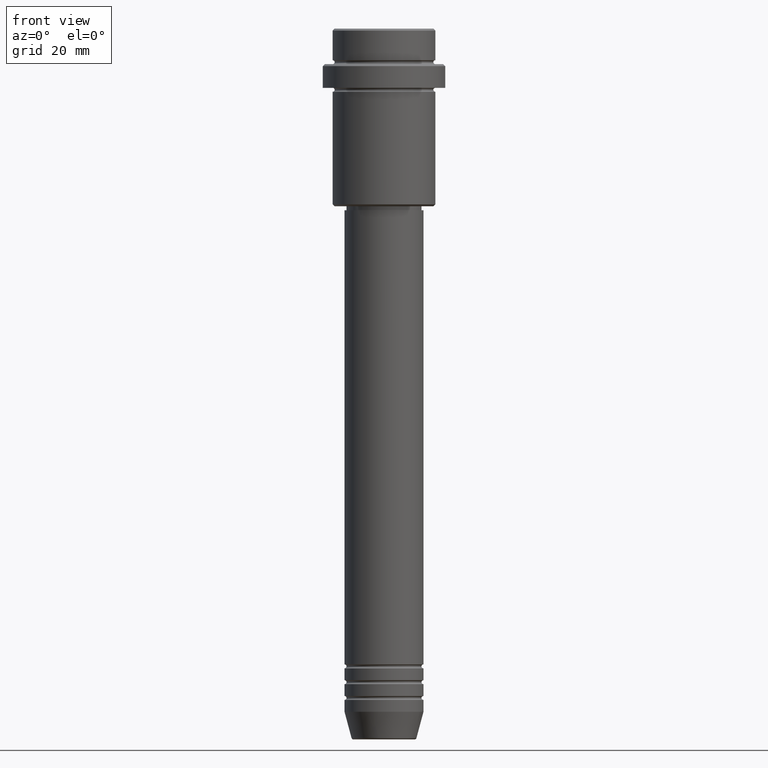
[diagram: clean part render]
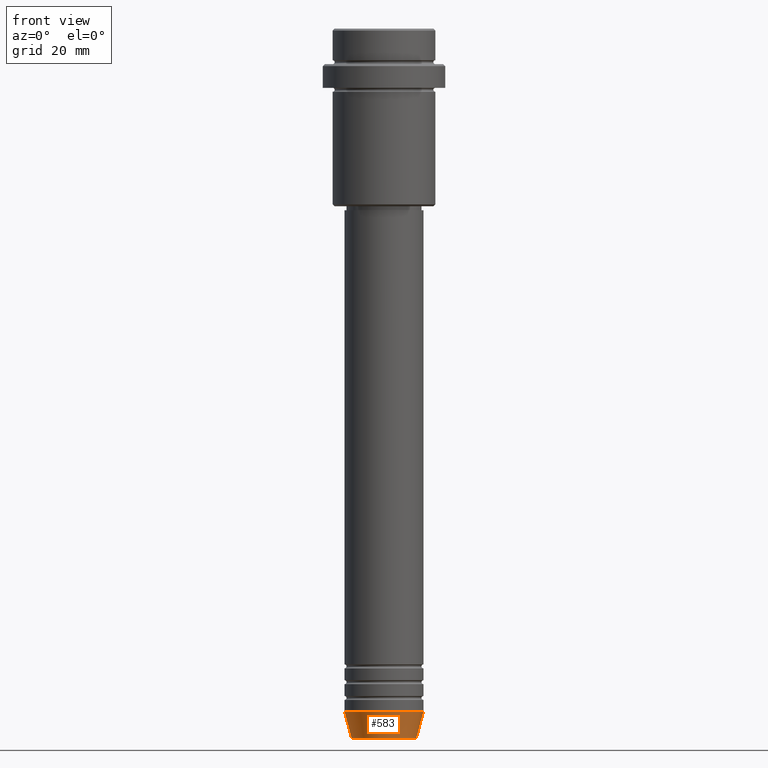
[diagram: same view with one face highlighted and labeled with its STEP entity id]
A machine part, front view. The second image highlights one B-rep face of the part: STEP entity #583.
In plain terms, the highlighted conical surface has half-angle 15 deg.
Its self-contained STEP definition (entity closure, byte-faithful):
#5 = DIRECTION ( 'NONE',  ( 1.000000000000000000, 0.000000000000000000, 0.000000000000000000 ) ) ;
#31 = DIRECTION ( 'NONE',  ( 1.000000000000000000, 0.000000000000000000, 0.000000000000000000 ) ) ;
#57 = CIRCLE ( 'NONE', #493, 8.223655072137200150 ) ;
#137 = CARTESIAN_POINT ( 'NONE',  ( -8.223655072137200150, 1.115877042642912645E-15, -179.6294095225512422 ) ) ;
#207 = ORIENTED_EDGE ( 'NONE', *, *, #1299, .T. ) ;
#263 = EDGE_LOOP ( 'NONE', ( #1265, #207, #458, #952 ) ) ;
#323 = CARTESIAN_POINT ( 'NONE',  ( 8.223655072137200150, 0.000000000000000000, -179.6294095225512422 ) ) ;
#360 = CARTESIAN_POINT ( 'NONE',  ( 10.00000000000000000, 0.000000000000000000, -173.0000000000000284 ) ) ;
#387 = EDGE_CURVE ( 'NONE', #767, #1009, #1125, .T. ) ;
#417 = VERTEX_POINT ( 'NONE', #1119 ) ;
#430 = EDGE_CURVE ( 'NONE', #1145, #417, #918, .T. ) ;
#446 = DIRECTION ( 'NONE',  ( 0.2588190451025215721, 0.000000000000000000, 0.9659258262890679791 ) ) ;
#458 = ORIENTED_EDGE ( 'NONE', *, *, #430, .T. ) ;
#493 = AXIS2_PLACEMENT_3D ( 'NONE', #576, #807, #31 ) ;
#521 = DIRECTION ( 'NONE',  ( -0.000000000000000000, -0.000000000000000000, 1.000000000000000000 ) ) ;
#534 = FACE_OUTER_BOUND ( 'NONE', #263, .T. ) ;
#576 = CARTESIAN_POINT ( 'NONE',  ( 0.000000000000000000, 0.000000000000000000, -179.6294095225512422 ) ) ;
#578 = CARTESIAN_POINT ( 'NONE',  ( -10.00000000000000000, 1.224646799147353256E-15, -173.0000000000000284 ) ) ;
#583 = ADVANCED_FACE ( 'NONE', ( #534 ), #917, .T. ) ;
#591 = AXIS2_PLACEMENT_3D ( 'NONE', #975, #759, #5 ) ;
#627 = EDGE_CURVE ( 'NONE', #1009, #417, #895, .T. ) ;
#682 = VECTOR ( 'NONE', #446, 1000.000000000000114 ) ;
#714 = CARTESIAN_POINT ( 'NONE',  ( -10.00000000000000000, 1.224646799147353256E-15, -173.0000000000000284 ) ) ;
#759 = DIRECTION ( 'NONE',  ( -0.000000000000000000, -0.000000000000000000, 1.000000000000000000 ) ) ;
#767 = VERTEX_POINT ( 'NONE', #137 ) ;
#807 = DIRECTION ( 'NONE',  ( -0.000000000000000000, -0.000000000000000000, 1.000000000000000000 ) ) ;
#895 = CIRCLE ( 'NONE', #591, 10.00000000000000000 ) ;
#917 = CONICAL_SURFACE ( 'NONE', #1208, 10.00000000000000000, 0.2617993877991502960 ) ;
#918 = LINE ( 'NONE', #360, #682 ) ;
#952 = ORIENTED_EDGE ( 'NONE', *, *, #627, .F. ) ;
#975 = CARTESIAN_POINT ( 'NONE',  ( 0.000000000000000000, 0.000000000000000000, -173.0000000000000284 ) ) ;
#993 = DIRECTION ( 'NONE',  ( 1.000000000000000000, 0.000000000000000000, 0.000000000000000000 ) ) ;
#1009 = VERTEX_POINT ( 'NONE', #714 ) ;
#1014 = DIRECTION ( 'NONE',  ( -0.2588190451025215721, 3.169619151431775418E-17, 0.9659258262890679791 ) ) ;
#1119 = CARTESIAN_POINT ( 'NONE',  ( 10.00000000000000000, 0.000000000000000000, -173.0000000000000284 ) ) ;
#1125 = LINE ( 'NONE', #578, #1384 ) ;
#1145 = VERTEX_POINT ( 'NONE', #323 ) ;
#1208 = AXIS2_PLACEMENT_3D ( 'NONE', #1291, #521, #993 ) ;
#1265 = ORIENTED_EDGE ( 'NONE', *, *, #387, .F. ) ;
#1291 = CARTESIAN_POINT ( 'NONE',  ( 0.000000000000000000, 0.000000000000000000, -173.0000000000000284 ) ) ;
#1299 = EDGE_CURVE ( 'NONE', #767, #1145, #57, .T. ) ;
#1384 = VECTOR ( 'NONE', #1014, 1000.000000000000114 ) ;